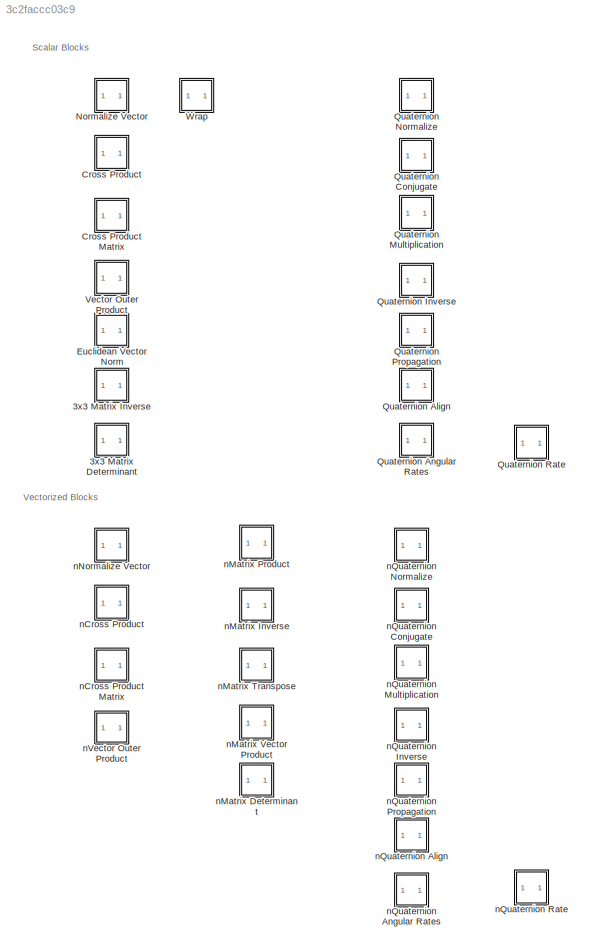
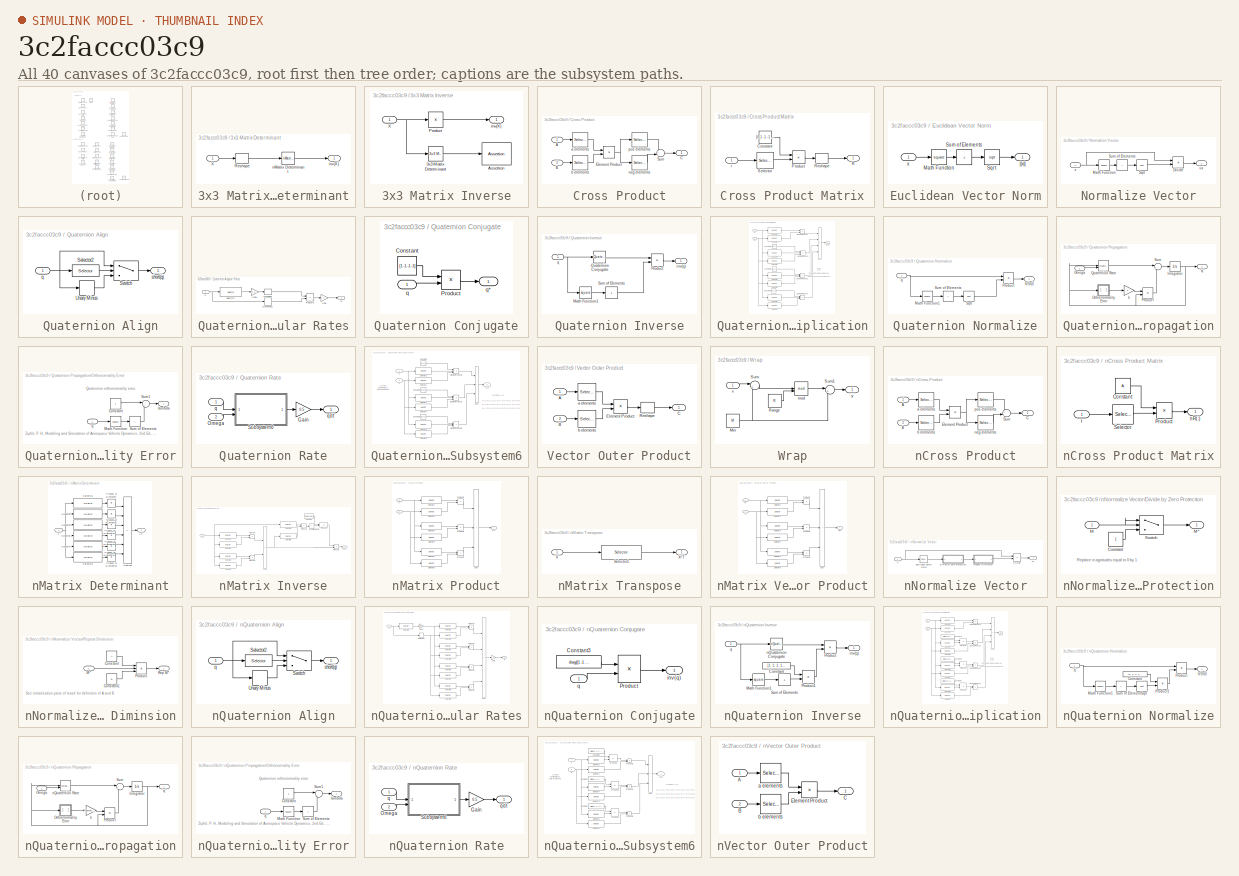
[diagram: thumbnail index - all 40 canvases of the model, root first then tree order]
MODEL slx_3c2faccc03c9
KIND library
CONFIG AbsTol = auto
CONFIG EnableMultiTasking = on
CONFIG FixedStep = auto
CONFIG MaxStep = auto
CONFIG MinStep = auto
CONFIG RelTol = 1e-3
CONFIG SampleTimeConstraint = Unconstrained
CONFIG SolverName = ode45
CONFIG StartTime = 0.0
CONFIG StopTime = 10.0
BLOCK [SubSystem] 3x3 Matrix Determinant
BLOCK [Reshape] 3x3 Matrix Determinant/Reshape
  OutputDimensionality = Column vector (2-D)
BLOCK [Inport] 3x3 Matrix Determinant/X
  PortDimensions = [3,3]
BLOCK [Outport] 3x3 Matrix Determinant/inv(X)
  PortDimensions = [1,1]
BLOCK [Reference] 3x3 Matrix Determinant/nMatrix Determinant  REF=$bdroot/nMatrix Determinant
  SourceBlock = $bdroot/nMatrix Determinant
  SourceType = nMatrix Determinant
BLOCK [SubSystem] 3x3 Matrix Inverse
BLOCK [Reference] 3x3 Matrix Inverse/3x3 Matrix Determinant  REF=$bdroot/3x3 Matrix Determinant
  SourceBlock = $bdroot/3x3 Matrix Determinant
  SourceType = Matrix Determinant (3x3)
BLOCK [Assertion] 3x3 Matrix Inverse/Assertion
  AssertionFailFcn = disp('Matrix inverse failed.  Matrix is singular.')
BLOCK [Product] 3x3 Matrix Inverse/Product
  Inputs = /
  Multiplication = Matrix(*)
  RndMeth = Zero
BLOCK [Inport] 3x3 Matrix Inverse/X
BLOCK [Outport] 3x3 Matrix Inverse/inv(X)
BLOCK [SubSystem] Cross Product
BLOCK [SubSystem] Cross Product Matrix
BLOCK [Constant] Cross Product Matrix/Constant
  Value = [0 1 -1 -1 0 1 1 -1 0]
BLOCK [Product] Cross Product Matrix/Product
  RndMeth = Zero
BLOCK [Outport] Cross Product Matrix/R
  PortDimensions = [3,3]
BLOCK [Reshape] Cross Product Matrix/Reshape
  OutputDimensionality = Customize
  OutputDimensions = [3,3]
BLOCK [Selector] Cross Product Matrix/Selector
  IndexOptions = Index vector (dialog)
  Indices = [1 3 2 3 2 1 2 1 3]
  InputPortWidth = 3
  OutputSizes = 1
BLOCK [Inport] Cross Product Matrix/r
BLOCK [Inport] Cross Product/A
BLOCK [Inport] Cross Product/B
  Port = 2
BLOCK [Outport] Cross Product/C
BLOCK [Product] Cross Product/Element Product
  RndMeth = Zero
BLOCK [Sum] Cross Product/Sum
  Inputs = +|-
BLOCK [Selector] Cross Product/a elements
  IndexOptions = Index vector (dialog)
  Indices = [2 3 1 3 1 2]
  InputPortWidth = 3
  OutputSizes = 1
BLOCK [Selector] Cross Product/b elements
  IndexOptions = Index vector (dialog)
  Indices = [3 1 2 2 3 1]
  InputPortWidth = 3
  OutputSizes = 1
BLOCK [Selector] Cross Product/neg elements
  IndexOptions = Index vector (dialog)
  Indices = [4:6]
  InputPortWidth = 6
  OutputSizes = 1
BLOCK [Selector] Cross Product/pos elements
  IndexOptions = Index vector (dialog)
  Indices = [1:3]
  InputPortWidth = 6
  OutputSizes = 1
BLOCK [SubSystem] Euclidean Vector Norm
BLOCK [Math] Euclidean Vector Norm/Math Function
  Operator = square
  SignedPower = on
BLOCK [Sqrt] Euclidean Vector Norm/Sqrt
BLOCK [Sum] Euclidean Vector Norm/Sum of Elements
  CollapseDim = dim
  CollapseMode = Specified dimension
  IconShape = rectangular
  Inputs = +
BLOCK [Inport] Euclidean Vector Norm/x
BLOCK [Outport] Euclidean Vector Norm/||x||
BLOCK [SubSystem] Normalize Vector
BLOCK [Product] Normalize Vector/Divide
  Inputs = */
BLOCK [Math] Normalize Vector/Math Function
  Operator = square
  SignedPower = on
BLOCK [Sqrt] Normalize Vector/Sqrt
BLOCK [Sum] Normalize Vector/Sum of Elements
  CollapseDim = dim
  IconShape = rectangular
  Inputs = +
BLOCK [Outport] Normalize Vector/ux
BLOCK [Inport] Normalize Vector/x
BLOCK [SubSystem] Quaternion Align
BLOCK [Selector] Quaternion Align/Selector2
  IndexOptions = Index vector (dialog)
  Indices = 1
  InputPortWidth = 4
  OutputSizes = 1
BLOCK [Switch] Quaternion Align/Switch
  Criteria = u2 > Threshold
  InputSameDT = off
  SaturateOnIntegerOverflow = off
  ZeroCross = off
BLOCK [UnaryMinus] Quaternion Align/Unary Minus
BLOCK [Inport] Quaternion Align/q
BLOCK [Outport] Quaternion Align/short(q)
BLOCK [SubSystem] Quaternion Angular Rates
BLOCK [Derivative] Quaternion Angular Rates/Derivative1
BLOCK [Gain] Quaternion Angular Rates/Gain
  Gain = 2
BLOCK [Gain] Quaternion Angular Rates/Gain1
  Gain = [-1 -1 -1, 1 -1 1, 1 1 -1, -1 1 1]'
BLOCK [Product] Quaternion Angular Rates/Product3
  Multiplication = Matrix(*)
  RndMeth = Zero
BLOCK [Reshape] Quaternion Angular Rates/Reshape
  OutputDimensionality = Customize
  OutputDimensions = [3,4]
BLOCK [Selector] Quaternion Angular Rates/Selector3
  IndexOptions = Index vector (dialog)
  Indices = [2 3 4, 1 4 3, 4 1 2, 3 2 1]
  InputPortWidth = 4
  OutputSizes = 1
BLOCK [Inport] Quaternion Angular Rates/q
  PortDimensions = 4
BLOCK [Outport] Quaternion Angular Rates/w
  PortDimensions = 3
BLOCK [SubSystem] Quaternion Conjugate
BLOCK [Constant] Quaternion Conjugate/Constant
  Value = [1 -1 -1 -1]
BLOCK [Product] Quaternion Conjugate/Product
  RndMeth = Zero
BLOCK [Inport] Quaternion Conjugate/q
BLOCK [Outport] Quaternion Conjugate/q*
BLOCK [SubSystem] Quaternion Inverse
BLOCK [Math] Quaternion Inverse/Math Function1
  Operator = square
  SignedPower = on
BLOCK [Product] Quaternion Inverse/Product
  Inputs = */
  RndMeth = Zero
BLOCK [Reference] Quaternion Inverse/Quaternion Conjugate  REF=$bdroot/Quaternion Conjugate
  SourceBlock = $bdroot/Quaternion Conjugate
  SourceType = Quaternion Conjugate (1-D)
BLOCK [Sum] Quaternion Inverse/Sum of Elements
  IconShape = rectangular
  Inputs = +
BLOCK [Outport] Quaternion Inverse/inv(q)
BLOCK [Inport] Quaternion Inverse/q
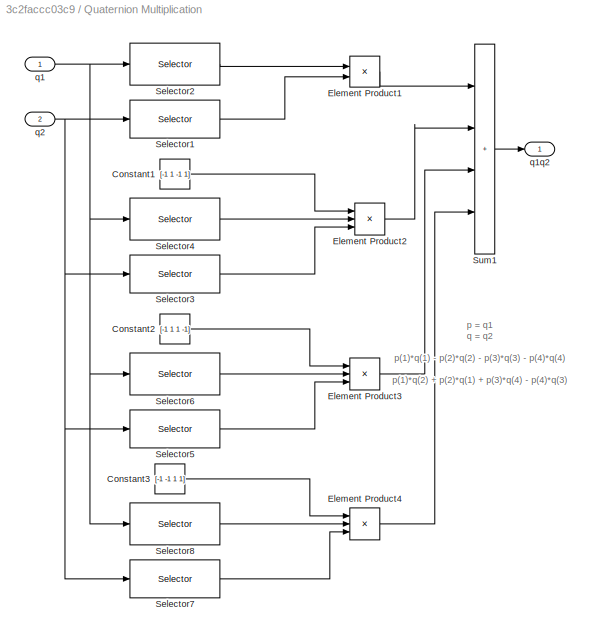
BLOCK [SubSystem] Quaternion Multiplication
BLOCK [Constant] Quaternion Multiplication/Constant1
  Value = [-1 1 -1 1]
BLOCK [Constant] Quaternion Multiplication/Constant2
  Value = [-1 1 1 -1]
BLOCK [Constant] Quaternion Multiplication/Constant3
  Value = [-1 -1 1 1]
BLOCK [Product] Quaternion Multiplication/Element Product1
  RndMeth = Zero
BLOCK [Product] Quaternion Multiplication/Element Product2
  Inputs = 3
  RndMeth = Zero
BLOCK [Product] Quaternion Multiplication/Element Product3
  Inputs = 3
  RndMeth = Zero
BLOCK [Product] Quaternion Multiplication/Element Product4
  Inputs = 3
  RndMeth = Zero
BLOCK [Selector] Quaternion Multiplication/Selector1
  IndexOptions = Index vector (dialog)
  Indices = [1 2 3 4]
  InputPortWidth = 4
  OutputSizes = 1
BLOCK [Selector] Quaternion Multiplication/Selector2
  IndexOptions = Index vector (dialog)
  Indices = [1 1 1 1]
  InputPortWidth = 4
  OutputSizes = 1
BLOCK [Selector] Quaternion Multiplication/Selector3
  IndexOptions = Index vector (dialog)
  Indices = [2 1 4 3]
  InputPortWidth = 4
  OutputSizes = 1
BLOCK [Selector] Quaternion Multiplication/Selector4
  IndexOptions = Index vector (dialog)
  Indices = [2 2 2 2]
  InputPortWidth = 4
  OutputSizes = 1
BLOCK [Selector] Quaternion Multiplication/Selector5
  IndexOptions = Index vector (dialog)
  Indices = [3 4 1 2]
  InputPortWidth = 4
  OutputSizes = 1
BLOCK [Selector] Quaternion Multiplication/Selector6
  IndexOptions = Index vector (dialog)
  Indices = [3 3 3 3]
  InputPortWidth = 4
  OutputSizes = 1
BLOCK [Selector] Quaternion Multiplication/Selector7
  IndexOptions = Index vector (dialog)
  Indices = [4 3 2 1]
  InputPortWidth = 4
  OutputSizes = 1
BLOCK [Selector] Quaternion Multiplication/Selector8
  IndexOptions = Index vector (dialog)
  Indices = [4 4 4 4]
  InputPortWidth = 4
  OutputSizes = 1
BLOCK [Sum] Quaternion Multiplication/Sum1
  IconShape = rectangular
  Inputs = ++++
BLOCK [Inport] Quaternion Multiplication/q1
BLOCK [Outport] Quaternion Multiplication/q1q2
BLOCK [Inport] Quaternion Multiplication/q2
  Port = 2
BLOCK [SubSystem] Quaternion Normalize
BLOCK [Math] Quaternion Normalize/Math Function1
  Operator = square
  SignedPower = on
BLOCK [Product] Quaternion Normalize/Product
  Inputs = */
  RndMeth = Zero
BLOCK [Sqrt] Quaternion Normalize/Sqrt
BLOCK [Sum] Quaternion Normalize/Sum of Elements
  IconShape = rectangular
  Inputs = +
BLOCK [Inport] Quaternion Normalize/q
BLOCK [Outport] Quaternion Normalize/q//||q||
BLOCK [SubSystem] Quaternion Propagation
BLOCK [Integrator] Quaternion Propagation/Integrator
  InitialCondition = qic
BLOCK [Inport] Quaternion Propagation/Omega
BLOCK [SubSystem] Quaternion Propagation/Orthonormality Error
BLOCK [Constant] Quaternion Propagation/Orthonormality Error/Constant
BLOCK [Math] Quaternion Propagation/Orthonormality Error/Math Function
  Operator = square
  SignedPower = on
BLOCK [Sum] Quaternion Propagation/Orthonormality Error/Sum of Elements
  IconShape = rectangular
  Inputs = +
BLOCK [Sum] Quaternion Propagation/Orthonormality Error/Sum1
  Inputs = |+-
BLOCK [Outport] Quaternion Propagation/Orthonormality Error/lambda
BLOCK [Inport] Quaternion Propagation/Orthonormality Error/q
BLOCK [Product] Quaternion Propagation/Product
  RndMeth = Zero
BLOCK [Reference] Quaternion Propagation/Quaternion Rate  REF=$bdroot/Quaternion Rate
  SourceBlock = $bdroot/Quaternion Rate
  SourceType = Quaternion Rate
BLOCK [Sum] Quaternion Propagation/Sum
  Inputs = |++
BLOCK [Gain] Quaternion Propagation/k
  Gain = k
BLOCK [Outport] Quaternion Propagation/q
BLOCK [SubSystem] Quaternion Rate
BLOCK [Gain] Quaternion Rate/Gain
  Gain = 0.5
BLOCK [Inport] Quaternion Rate/Omega
  Port = 2
BLOCK [SubSystem] Quaternion Rate/Subsystem6
BLOCK [Constant] Quaternion Rate/Subsystem6/Constant1
  Value = [-1 1 1 1]
BLOCK [Constant] Quaternion Rate/Subsystem6/Constant2
  Value = [-1 1 -1 1]
BLOCK [Constant] Quaternion Rate/Subsystem6/Constant3
  Value = [-1 -1 1 -1]
BLOCK [Product] Quaternion Rate/Subsystem6/Element Product1
  Inputs = 3
  RndMeth = Zero
BLOCK [Product] Quaternion Rate/Subsystem6/Element Product2
  Inputs = 3
  RndMeth = Zero
BLOCK [Product] Quaternion Rate/Subsystem6/Element Product3
  Inputs = 3
  RndMeth = Zero
BLOCK [Selector] Quaternion Rate/Subsystem6/Selector1
  IndexOptions = Index vector (dialog)
  Indices = [1 1 2 3]
  InputPortWidth = 3
  OutputSizes = 1
BLOCK [Selector] Quaternion Rate/Subsystem6/Selector2
  IndexOptions = Index vector (dialog)
  Indices = [2 1 1 1]
  InputPortWidth = 4
  OutputSizes = 1
BLOCK [Selector] Quaternion Rate/Subsystem6/Selector3
  IndexOptions = Index vector (dialog)
  Indices = [2 3 3 2]
  InputPortWidth = 3
  OutputSizes = 1
BLOCK [Selector] Quaternion Rate/Subsystem6/Selector4
  IndexOptions = Index vector (dialog)
  Indices = [3 3 2 2]
  InputPortWidth = 4
  OutputSizes = 1
BLOCK [Selector] Quaternion Rate/Subsystem6/Selector5
  IndexOptions = Index vector (dialog)
  Indices = [3 2 1 1]
  InputPortWidth = 3
  OutputSizes = 1
BLOCK [Selector] Quaternion Rate/Subsystem6/Selector6
  IndexOptions = Index vector (dialog)
  Indices = [4 4 4 3]
  InputPortWidth = 4
  OutputSizes = 1
BLOCK [Sum] Quaternion Rate/Subsystem6/Sum
  IconShape = rectangular
  Inputs = +++
BLOCK [Inport] Quaternion Rate/Subsystem6/p
BLOCK [Outport] Quaternion Rate/Subsystem6/p * q
BLOCK [Inport] Quaternion Rate/Subsystem6/q
  Port = 2
BLOCK [Inport] Quaternion Rate/q
BLOCK [Outport] Quaternion Rate/qdt
BLOCK [SubSystem] Vector Outer Product
BLOCK [Inport] Vector Outer Product/A
BLOCK [Inport] Vector Outer Product/B
  Port = 2
BLOCK [Outport] Vector Outer Product/C
BLOCK [Product] Vector Outer Product/Element Product
  RndMeth = Zero
BLOCK [Reshape] Vector Outer Product/Reshape
  OutputDimensionality = Customize
  OutputDimensions = [3,3]
BLOCK [Selector] Vector Outer Product/a elements
  IndexOptions = Index vector (dialog)
  Indices = [1 2 3 1 2 3 1 2 3]
  InputPortWidth = 3
  OutputSizes = 1
BLOCK [Selector] Vector Outer Product/b elements
  IndexOptions = Index vector (dialog)
  Indices = [1 1 1 2 2 2 3 3 3]
  InputPortWidth = 3
  OutputSizes = 1
BLOCK [SubSystem] Wrap
BLOCK [Constant] Wrap/Min
  Value = M
  VectorParams1D = off
BLOCK [Constant] Wrap/Range
  Value = R
  VectorParams1D = off
BLOCK [Sum] Wrap/Sum
  Inputs = |+-
BLOCK [Sum] Wrap/Sum1
  Inputs = |++
BLOCK [Math] Wrap/mod
  Operator = mod
  SignedPower = on
BLOCK [Inport] Wrap/x
BLOCK [Outport] Wrap/y
BLOCK [SubSystem] nCross Product
BLOCK [SubSystem] nCross Product Matrix
BLOCK [Constant] nCross Product Matrix/Constant
  Value = A
BLOCK [Product] nCross Product Matrix/Product
  Multiplication = Matrix(*)
  RndMeth = Zero
BLOCK [Selector] nCross Product Matrix/Selector
  IndexOptions = Index vector (dialog),Select all
  Indices = [1 3 2 3 2 1 2 1 3],1
  InputPortWidth = 3
  NumberOfDimensions = 2
  OutputSizes = 1,1
BLOCK [Outport] nCross Product Matrix/nR(:)
  PortDimensions = [9,n]
BLOCK [Inport] nCross Product Matrix/r
  PortDimensions = [3,n]
BLOCK [Inport] nCross Product/A
  PortDimensions = [3,n]
BLOCK [Inport] nCross Product/B
  Port = 2
  PortDimensions = [3,n]
BLOCK [Outport] nCross Product/C
  PortDimensions = [3,n]
BLOCK [Product] nCross Product/Element Product
  RndMeth = Zero
BLOCK [Sum] nCross Product/Sum
  Inputs = +|-
BLOCK [Selector] nCross Product/a elements
  IndexOptions = Index vector (dialog),Select all
  Indices = [2 3 1 3 1 2],1
  InputPortWidth = 3
  NumberOfDimensions = 2
  OutputSizes = 1,1
BLOCK [Selector] nCross Product/b elements
  IndexOptions = Index vector (dialog),Select all
  Indices = [3 1 2 2 3 1],1
  InputPortWidth = 3
  NumberOfDimensions = 2
  OutputSizes = 1,1
BLOCK [Selector] nCross Product/neg elements
  IndexOptions = Index vector (dialog),Select all
  Indices = [4:6],1
  InputPortWidth = 3
  NumberOfDimensions = 2
  OutputSizes = 1,1
BLOCK [Selector] nCross Product/pos elements
  IndexOptions = Index vector (dialog),Select all
  Indices = [1:3],1
  InputPortWidth = 3
  NumberOfDimensions = 2
  OutputSizes = 1,1
BLOCK [SubSystem] nMatrix Determinant
BLOCK [Product] nMatrix Determinant/Product of Elements
  CollapseMode = Specified dimension
  Inputs = *
BLOCK [Product] nMatrix Determinant/Product of Elements1
  CollapseMode = Specified dimension
  Inputs = *
BLOCK [Product] nMatrix Determinant/Product of Elements2
  CollapseMode = Specified dimension
  Inputs = *
BLOCK [Product] nMatrix Determinant/Product of Elements3
  CollapseMode = Specified dimension
  Inputs = *
BLOCK [Product] nMatrix Determinant/Product of Elements4
  CollapseMode = Specified dimension
  Inputs = *
BLOCK [Product] nMatrix Determinant/Product of Elements5
  CollapseMode = Specified dimension
  Inputs = *
BLOCK [Selector] nMatrix Determinant/Selector1
  IndexOptions = Index vector (dialog),Select all
  Indices = [4 8 3],1
  InputPortWidth = 3
  NumberOfDimensions = 2
  OutputSizes = 1,1
BLOCK [Selector] nMatrix Determinant/Selector2
  IndexOptions = Index vector (dialog),Select all
  Indices = [7 2 6],1
  InputPortWidth = 3
  NumberOfDimensions = 2
  OutputSizes = 1,1
BLOCK [Selector] nMatrix Determinant/Selector3
  IndexOptions = Index vector (dialog),Select all
  Indices = [7 5 3],1
  InputPortWidth = 3
  NumberOfDimensions = 2
  OutputSizes = 1,1
BLOCK [Selector] nMatrix Determinant/Selector4
  IndexOptions = Index vector (dialog),Select all
  Indices = [4 2 9],1
  InputPortWidth = 3
  NumberOfDimensions = 2
  OutputSizes = 1,1
BLOCK [Selector] nMatrix Determinant/Selector5
  IndexOptions = Index vector (dialog),Select all
  Indices = [1 8 6],1
  InputPortWidth = 3
  NumberOfDimensions = 2
  OutputSizes = 1,1
BLOCK [Selector] nMatrix Determinant/Selector6
  IndexOptions = Index vector (dialog),Select all
  Indices = [1 5 9],1
  InputPortWidth = 3
  NumberOfDimensions = 2
  OutputSizes = 1,1
BLOCK [Sum] nMatrix Determinant/Subtract
  IconShape = rectangular
  Inputs = +++---
BLOCK [Inport] nMatrix Determinant/X
  PortDimensions = [9,n]
BLOCK [Outport] nMatrix Determinant/|X|
  PortDimensions = [1,n]
BLOCK [SubSystem] nMatrix Inverse
BLOCK [Constant] nMatrix Inverse/Constant
  Value = ones(9,1)
  VectorParams1D = off
BLOCK [Product] nMatrix Inverse/Product1
  RndMeth = Zero
BLOCK [Product] nMatrix Inverse/Product4
  RndMeth = Zero
BLOCK [Product] nMatrix Inverse/Product5
  RndMeth = Zero
BLOCK [Product] nMatrix Inverse/Product6
  Multiplication = Matrix(*)
  RndMeth = Zero
BLOCK [Product] nMatrix Inverse/Product7
  Inputs = /*
  RndMeth = Zero
BLOCK [Selector] nMatrix Inverse/Selector1
  IndexOptions = Index vector (dialog),Select all
  Indices = [5 8 2 7 1 4 4 7 1],1
  InputPortWidth = 3
  NumberOfDimensions = 2
  OutputSizes = 1,1
BLOCK [Selector] nMatrix Inverse/Selector2
  IndexOptions = Index vector (dialog),Select all
  Indices = [9 3 6 6 9 3 8 2 5],1
  InputPortWidth = 3
  NumberOfDimensions = 2
  OutputSizes = 1,1
BLOCK [Selector] nMatrix Inverse/Selector3
  IndexOptions = Index vector (dialog),Select all
  Indices = [8 2 5 4 7 1 7 1 4],1
  InputPortWidth = 3
  NumberOfDimensions = 2
  OutputSizes = 1,1
BLOCK [Selector] nMatrix Inverse/Selector4
  IndexOptions = Index vector (dialog),Select all
  Indices = [6 9 3 9 3 6 5 8 2],1
  InputPortWidth = 3
  NumberOfDimensions = 2
  OutputSizes = 1,1
BLOCK [Selector] nMatrix Inverse/Selector5
  IndexOptions = Index vector (dialog),Select all
  Indices = [1 2 3],1
  InputPortWidth = 3
  NumberOfDimensions = 2
  OutputSizes = 1,1
BLOCK [Selector] nMatrix Inverse/Selector6
  IndexOptions = Index vector (dialog),Select all
  Indices = [1 4 7],1
  InputPortWidth = 3
  NumberOfDimensions = 2
  OutputSizes = 1,1
BLOCK [Sum] nMatrix Inverse/Sum of Elements
  CollapseMode = Specified dimension
  IconShape = rectangular
  Inputs = +
BLOCK [Sum] nMatrix Inverse/Sum1
  IconShape = rectangular
  Inputs = +-
BLOCK [Inport] nMatrix Inverse/X
  PortDimensions = [9,n]
BLOCK [Outport] nMatrix Inverse/inv(X)
  PortDimensions = [9,n]
BLOCK [SubSystem] nMatrix Product
BLOCK [Product] nMatrix Product/Product1
  RndMeth = Zero
BLOCK [Product] nMatrix Product/Product2
  RndMeth = Zero
BLOCK [Product] nMatrix Product/Product3
  RndMeth = Zero
BLOCK [Selector] nMatrix Product/Selector1
  IndexOptions = Index vector (dialog),Select all
  Indices = [1 2 3 1 2 3 1 2 3],1
  InputPortWidth = 3
  NumberOfDimensions = 2
  OutputSizes = 1,1
BLOCK [Selector] nMatrix Product/Selector2
  IndexOptions = Index vector (dialog),Select all
  Indices = [1 1 1 4 4 4 7 7 7],1
  InputPortWidth = 3
  NumberOfDimensions = 2
  OutputSizes = 1,1
BLOCK [Selector] nMatrix Product/Selector3
  IndexOptions = Index vector (dialog),Select all
  Indices = [4 5 6 4 5 6 4 5 6],1
  InputPortWidth = 3
  NumberOfDimensions = 2
  OutputSizes = 1,1
BLOCK [Selector] nMatrix Product/Selector4
  IndexOptions = Index vector (dialog),Select all
  Indices = [2 2 2 5 5 5 8 8 8],1
  InputPortWidth = 3
  NumberOfDimensions = 2
  OutputSizes = 1,1
BLOCK [Selector] nMatrix Product/Selector5
  IndexOptions = Index vector (dialog),Select all
  Indices = [7 8 9  7 8 9 7 8 9],1
  InputPortWidth = 3
  NumberOfDimensions = 2
  OutputSizes = 1,1
BLOCK [Selector] nMatrix Product/Selector6
  IndexOptions = Index vector (dialog),Select all
  Indices = [3 3 3 6 6 6 9 9 9],1
  InputPortWidth = 3
  NumberOfDimensions = 2
  OutputSizes = 1,1
BLOCK [Sum] nMatrix Product/Sum
  IconShape = rectangular
  Inputs = +++
BLOCK [Inport] nMatrix Product/X
  PortDimensions = [9,n]
BLOCK [Outport] nMatrix Product/X*Y
  PortDimensions = [9,n]
BLOCK [Inport] nMatrix Product/Y
  Port = 2
  PortDimensions = [9,n]
BLOCK [SubSystem] nMatrix Transpose
BLOCK [Selector] nMatrix Transpose/Selector1
  IndexOptions = Index vector (dialog),Select all
  Indices = [1 4 7 2 5 8 3 6 9],1
  InputPortWidth = 3
  NumberOfDimensions = 2
  OutputSizes = 1,1
BLOCK [Inport] nMatrix Transpose/X
  PortDimensions = [9,n]
BLOCK [Outport] nMatrix Transpose/X^T
  PortDimensions = [9,n]
BLOCK [SubSystem] nMatrix Vector Product
BLOCK [Inport] nMatrix Vector Product/M
  PortDimensions = [9,n]
BLOCK [Outport] nMatrix Vector Product/M*v
  PortDimensions = [3,n]
BLOCK [Product] nMatrix Vector Product/Product1
  RndMeth = Zero
BLOCK [Product] nMatrix Vector Product/Product2
  RndMeth = Zero
BLOCK [Product] nMatrix Vector Product/Product3
  RndMeth = Zero
BLOCK [Selector] nMatrix Vector Product/Selector1
  IndexOptions = Index vector (dialog),Select all
  Indices = [1 2 3],1
  InputPortWidth = 3
  NumberOfDimensions = 2
  OutputSizes = 1,1
BLOCK [Selector] nMatrix Vector Product/Selector2
  IndexOptions = Index vector (dialog),Select all
  Indices = [1 1 1],1
  InputPortWidth = 3
  NumberOfDimensions = 2
  OutputSizes = 1,1
BLOCK [Selector] nMatrix Vector Product/Selector3
  IndexOptions = Index vector (dialog),Select all
  Indices = [4 5 6],1
  InputPortWidth = 3
  NumberOfDimensions = 2
  OutputSizes = 1,1
BLOCK [Selector] nMatrix Vector Product/Selector4
  IndexOptions = Index vector (dialog),Select all
  Indices = [2 2 2],1
  InputPortWidth = 3
  NumberOfDimensions = 2
  OutputSizes = 1,1
BLOCK [Selector] nMatrix Vector Product/Selector5
  IndexOptions = Index vector (dialog),Select all
  Indices = [7 8 9],1
  InputPortWidth = 3
  NumberOfDimensions = 2
  OutputSizes = 1,1
BLOCK [Selector] nMatrix Vector Product/Selector6
  IndexOptions = Index vector (dialog),Select all
  Indices = [3 3 3],1
  InputPortWidth = 3
  NumberOfDimensions = 2
  OutputSizes = 1,1
BLOCK [Sum] nMatrix Vector Product/Sum
  IconShape = rectangular
  Inputs = +++
BLOCK [Inport] nMatrix Vector Product/v
  Port = 2
  PortDimensions = [3,n]
BLOCK [SubSystem] nNormalize Vector
BLOCK [Product] nNormalize Vector/Divide
  Inputs = */
BLOCK [SubSystem] nNormalize Vector/Divide by Zero Protection
BLOCK [Constant] nNormalize Vector/Divide by Zero Protection/Constant
BLOCK [Inport] nNormalize Vector/Divide by Zero Protection/M
BLOCK [Outport] nNormalize Vector/Divide by Zero Protection/M*
BLOCK [Switch] nNormalize Vector/Divide by Zero Protection/Switch
  Criteria = u2 ~= 0
  InputSameDT = off
  SaturateOnIntegerOverflow = off
  ZeroCross = off
BLOCK [Reference] nNormalize Vector/Euclidean Vector Norm  REF=$bdroot/Euclidean Vector Norm
  SourceBlock = $bdroot/Euclidean Vector Norm
  SourceType = Euclidean Norm
BLOCK [SubSystem] nNormalize Vector/Repeat Diminsion
BLOCK [Constant] nNormalize Vector/Repeat Diminsion/Constant
  Value = A
  VectorParams1D = off
BLOCK [Constant] nNormalize Vector/Repeat Diminsion/Constant1
  Value = B
  VectorParams1D = off
BLOCK [Inport] nNormalize Vector/Repeat Diminsion/M*
BLOCK [Product] nNormalize Vector/Repeat Diminsion/Product
  Inputs = 3
  Multiplication = Matrix(*)
  RndMeth = Zero
BLOCK [Outport] nNormalize Vector/Repeat Diminsion/Rep M*
BLOCK [Outport] nNormalize Vector/ux
  PortDimensions = n
BLOCK [Inport] nNormalize Vector/x
  PortDimensions = n
BLOCK [SubSystem] nQuaternion Align
BLOCK [Selector] nQuaternion Align/Selector2
  IndexOptions = Index vector (dialog),Select all
  Indices = 1,1
  InputPortWidth = 3
  NumberOfDimensions = 2
  OutputSizes = 1,1
BLOCK [Switch] nQuaternion Align/Switch
  Criteria = u2 > Threshold
  InputSameDT = off
  SaturateOnIntegerOverflow = off
  ZeroCross = off
BLOCK [UnaryMinus] nQuaternion Align/Unary Minus
BLOCK [Inport] nQuaternion Align/q
  PortDimensions = [4,n]
BLOCK [Outport] nQuaternion Align/short(q)
  PortDimensions = [4,n]
BLOCK [SubSystem] nQuaternion Angular Rates
BLOCK [Derivative] nQuaternion Angular Rates/Derivative1
BLOCK [Gain] nQuaternion Angular Rates/Gain
  Gain = 2
BLOCK [Gain] nQuaternion Angular Rates/Gain1
  Gain = repmat([-1 -1 -1, 1 -1 1, 1 1 -1, -1 1 1]',1,n)
BLOCK [Product] nQuaternion Angular Rates/Product1
  RndMeth = Zero
BLOCK [Product] nQuaternion Angular Rates/Product2
  RndMeth = Zero
BLOCK [Product] nQuaternion Angular Rates/Product3
  RndMeth = Zero
BLOCK [Product] nQuaternion Angular Rates/Product4
  RndMeth = Zero
BLOCK [Selector] nQuaternion Angular Rates/Selector1
  IndexOptions = Index vector (dialog),Select all
  Indices = [1 2 3],1
  InputPortWidth = 3
  NumberOfDimensions = 2
  OutputSizes = 1,1
BLOCK [Selector] nQuaternion Angular Rates/Selector2
  IndexOptions = Index vector (dialog),Select all
  Indices = [1 1 1],1
  InputPortWidth = 3
  NumberOfDimensions = 2
  OutputSizes = 1,1
BLOCK [Selector] nQuaternion Angular Rates/Selector3
  IndexOptions = Index vector (dialog),Select all
  Indices = [2 3 4, 1 4 3, 4 1 2, 3 2 1],1
  InputPortWidth = 4
  NumberOfDimensions = 2
  OutputSizes = 1,1
BLOCK [Selector] nQuaternion Angular Rates/Selector4
  IndexOptions = Index vector (dialog),Select all
  Indices = [4 5 6],1
  InputPortWidth = 3
  NumberOfDimensions = 2
  OutputSizes = 1,1
BLOCK [Selector] nQuaternion Angular Rates/Selector5
  IndexOptions = Index vector (dialog),Select all
  Indices = [2 2 2],1
  InputPortWidth = 3
  NumberOfDimensions = 2
  OutputSizes = 1,1
BLOCK [Selector] nQuaternion Angular Rates/Selector6
  IndexOptions = Index vector (dialog),Select all
  Indices = [7 8 9],1
  InputPortWidth = 3
  NumberOfDimensions = 2
  OutputSizes = 1,1
BLOCK [Selector] nQuaternion Angular Rates/Selector7
  IndexOptions = Index vector (dialog),Select all
  Indices = [3 3 3],1
  InputPortWidth = 3
  NumberOfDimensions = 2
  OutputSizes = 1,1
BLOCK [Selector] nQuaternion Angular Rates/Selector8
  IndexOptions = Index vector (dialog),Select all
  Indices = [10 11 12],1
  InputPortWidth = 3
  NumberOfDimensions = 2
  OutputSizes = 1,1
BLOCK [Selector] nQuaternion Angular Rates/Selector9
  IndexOptions = Index vector (dialog),Select all
  Indices = [4 4 4],1
  InputPortWidth = 3
  NumberOfDimensions = 2
  OutputSizes = 1,1
BLOCK [Sum] nQuaternion Angular Rates/Sum
  IconShape = rectangular
  Inputs = ++++
BLOCK [Inport] nQuaternion Angular Rates/q
  PortDimensions = [4,n]
BLOCK [Outport] nQuaternion Angular Rates/w
  PortDimensions = [3,n]
BLOCK [SubSystem] nQuaternion Conjugate
BLOCK [Constant] nQuaternion Conjugate/Constant3
  Value = diag([1 -1 -1 -1])
  VectorParams1D = off
BLOCK [Product] nQuaternion Conjugate/Product
  Multiplication = Matrix(*)
  RndMeth = Zero
BLOCK [Outport] nQuaternion Conjugate/inv(q)
  PortDimensions = [4,n]
BLOCK [Inport] nQuaternion Conjugate/q
  PortDimensions = [4,n]
BLOCK [SubSystem] nQuaternion Inverse
BLOCK [Constant] nQuaternion Inverse/Constant
  Value = [1; 1; 1; 1;]
  VectorParams1D = off
BLOCK [Math] nQuaternion Inverse/Math Function1
  Operator = square
  SignedPower = on
BLOCK [Product] nQuaternion Inverse/Product
  Inputs = */
  RndMeth = Zero
BLOCK [Product] nQuaternion Inverse/Product1
  Multiplication = Matrix(*)
  RndMeth = Zero
BLOCK [Sum] nQuaternion Inverse/Sum of Elements
  CollapseMode = Specified dimension
  IconShape = rectangular
  Inputs = +
BLOCK [Outport] nQuaternion Inverse/inv(q)
  PortDimensions = [4,n]
BLOCK [Reference] nQuaternion Inverse/nQuaternion Conjugate  REF=$bdroot/nQuaternion Conjugate
  SourceBlock = $bdroot/nQuaternion Conjugate
  SourceType = nQuaternion Conjugate
BLOCK [Inport] nQuaternion Inverse/q
  PortDimensions = [4,n]
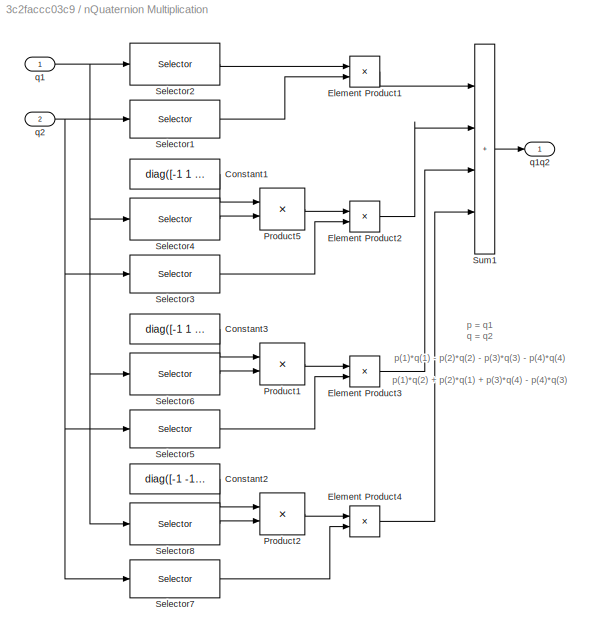
BLOCK [SubSystem] nQuaternion Multiplication
BLOCK [Constant] nQuaternion Multiplication/Constant1
  Value = diag([-1 1 -1 1])
  VectorParams1D = off
BLOCK [Constant] nQuaternion Multiplication/Constant2
  Value = diag([-1 -1 1 1])
  VectorParams1D = off
BLOCK [Constant] nQuaternion Multiplication/Constant3
  Value = diag([-1 1 1 -1])
  VectorParams1D = off
BLOCK [Product] nQuaternion Multiplication/Element Product1
  RndMeth = Zero
BLOCK [Product] nQuaternion Multiplication/Element Product2
  RndMeth = Zero
BLOCK [Product] nQuaternion Multiplication/Element Product3
  RndMeth = Zero
BLOCK [Product] nQuaternion Multiplication/Element Product4
  RndMeth = Zero
BLOCK [Product] nQuaternion Multiplication/Product1
  Multiplication = Matrix(*)
  RndMeth = Zero
BLOCK [Product] nQuaternion Multiplication/Product2
  Multiplication = Matrix(*)
  RndMeth = Zero
BLOCK [Product] nQuaternion Multiplication/Product5
  Multiplication = Matrix(*)
  RndMeth = Zero
BLOCK [Selector] nQuaternion Multiplication/Selector1
  IndexOptions = Index vector (dialog),Select all
  Indices = [1 2 3 4],1
  InputPortWidth = 3
  NumberOfDimensions = 2
  OutputSizes = 1,1
BLOCK [Selector] nQuaternion Multiplication/Selector2
  IndexOptions = Index vector (dialog),Select all
  Indices = [1 1 1 1],1
  InputPortWidth = 3
  NumberOfDimensions = 2
  OutputSizes = 1,1
BLOCK [Selector] nQuaternion Multiplication/Selector3
  IndexOptions = Index vector (dialog),Select all
  Indices = [2 1 4 3],1
  InputPortWidth = 3
  NumberOfDimensions = 2
  OutputSizes = 1,1
BLOCK [Selector] nQuaternion Multiplication/Selector4
  IndexOptions = Index vector (dialog),Select all
  Indices = [2 2 2 2],1
  InputPortWidth = 3
  NumberOfDimensions = 2
  OutputSizes = 1,1
BLOCK [Selector] nQuaternion Multiplication/Selector5
  IndexOptions = Index vector (dialog),Select all
  Indices = [3 4 1 2],1
  InputPortWidth = 3
  NumberOfDimensions = 2
  OutputSizes = 1,1
BLOCK [Selector] nQuaternion Multiplication/Selector6
  IndexOptions = Index vector (dialog),Select all
  Indices = [3 3 3 3],1
  InputPortWidth = 3
  NumberOfDimensions = 2
  OutputSizes = 1,1
BLOCK [Selector] nQuaternion Multiplication/Selector7
  IndexOptions = Index vector (dialog),Select all
  Indices = [4 3 2 1],1
  InputPortWidth = 3
  NumberOfDimensions = 2
  OutputSizes = 1,1
BLOCK [Selector] nQuaternion Multiplication/Selector8
  IndexOptions = Index vector (dialog),Select all
  Indices = [4 4 4 4],1
  InputPortWidth = 3
  NumberOfDimensions = 2
  OutputSizes = 1,1
BLOCK [Sum] nQuaternion Multiplication/Sum1
  IconShape = rectangular
  Inputs = ++++
BLOCK [Inport] nQuaternion Multiplication/q1
  PortDimensions = [4,n]
BLOCK [Outport] nQuaternion Multiplication/q1q2
  PortDimensions = [4,n]
BLOCK [Inport] nQuaternion Multiplication/q2
  Port = 2
  PortDimensions = [4,n]
BLOCK [SubSystem] nQuaternion Normalize
BLOCK [Constant] nQuaternion Normalize/Constant
  Value = [1; 1; 1; 1;]
  VectorParams1D = off
BLOCK [Math] nQuaternion Normalize/Math Function1
  Operator = square
  SignedPower = on
BLOCK [Product] nQuaternion Normalize/Product
  Inputs = */
  RndMeth = Zero
BLOCK [Product] nQuaternion Normalize/Product1
  Multiplication = Matrix(*)
  RndMeth = Zero
BLOCK [Sqrt] nQuaternion Normalize/Sqrt
BLOCK [Sum] nQuaternion Normalize/Sum of Elements
  CollapseMode = Specified dimension
  IconShape = rectangular
  Inputs = +
BLOCK [Inport] nQuaternion Normalize/q
  PortDimensions = [4,n]
BLOCK [Outport] nQuaternion Normalize/q//||q||
  PortDimensions = [4,n]
BLOCK [SubSystem] nQuaternion Propagation
BLOCK [Integrator] nQuaternion Propagation/Integrator
  InitialCondition = q0
BLOCK [Inport] nQuaternion Propagation/Omega
  PortDimensions = [3,n]
BLOCK [SubSystem] nQuaternion Propagation/Orthonormality Error
BLOCK [Constant] nQuaternion Propagation/Orthonormality Error/Constant
BLOCK [Math] nQuaternion Propagation/Orthonormality Error/Math Function
  Operator = square
  SignedPower = on
BLOCK [Sum] nQuaternion Propagation/Orthonormality Error/Sum of Elements
  CollapseMode = Specified dimension
  IconShape = rectangular
  Inputs = +
BLOCK [Sum] nQuaternion Propagation/Orthonormality Error/Sum1
  Inputs = |+-
BLOCK [Outport] nQuaternion Propagation/Orthonormality Error/lambda
  PortDimensions = [1,n]
BLOCK [Inport] nQuaternion Propagation/Orthonormality Error/q
  PortDimensions = [4,n]
BLOCK [Product] nQuaternion Propagation/Product
  RndMeth = Zero
BLOCK [Sum] nQuaternion Propagation/Sum
  Inputs = |++
BLOCK [Gain] nQuaternion Propagation/k
  Gain = repmat(k,n,1)
  Multiplication = Matrix(K*u)
BLOCK [Reference] nQuaternion Propagation/nQuaternion Rate  REF=$bdroot/nQuaternion Rate
  SourceBlock = $bdroot/nQuaternion Rate
  SourceType = Quaternion Rate
BLOCK [Outport] nQuaternion Propagation/q
  PortDimensions = [4,n]
BLOCK [SubSystem] nQuaternion Rate
BLOCK [Gain] nQuaternion Rate/Gain
  Gain = 0.5
BLOCK [Inport] nQuaternion Rate/Omega
  Port = 2
  PortDimensions = [3,n]
BLOCK [SubSystem] nQuaternion Rate/Subsystem6
BLOCK [Constant] nQuaternion Rate/Subsystem6/Constant1
  Value = diag([-1 1 -1 1])
  VectorParams1D = off
BLOCK [Constant] nQuaternion Rate/Subsystem6/Constant3
  Value = diag([-1 -1 1 -1])
  VectorParams1D = off
BLOCK [Constant] nQuaternion Rate/Subsystem6/Constant4
  Value = diag([-1 1 1 1])
  VectorParams1D = off
BLOCK [Product] nQuaternion Rate/Subsystem6/Product1
  Multiplication = Matrix(*)
  RndMeth = Zero
BLOCK [Product] nQuaternion Rate/Subsystem6/Product3
  RndMeth = Zero
BLOCK [Product] nQuaternion Rate/Subsystem6/Product4
  RndMeth = Zero
BLOCK [Product] nQuaternion Rate/Subsystem6/Product5
  Multiplication = Matrix(*)
  RndMeth = Zero
BLOCK [Product] nQuaternion Rate/Subsystem6/Product6
  RndMeth = Zero
BLOCK [Product] nQuaternion Rate/Subsystem6/Product8
  Multiplication = Matrix(*)
  RndMeth = Zero
BLOCK [Selector] nQuaternion Rate/Subsystem6/Selector1
  IndexOptions = Index vector (dialog),Select all
  Indices = [1 1 2 3],1
  InputPortWidth = 3
  NumberOfDimensions = 2
  OutputSizes = 1,1
BLOCK [Selector] nQuaternion Rate/Subsystem6/Selector2
  IndexOptions = Index vector (dialog),Select all
  Indices = [2 1 1 1],1
  InputPortWidth = 3
  NumberOfDimensions = 2
  OutputSizes = 1,1
BLOCK [Selector] nQuaternion Rate/Subsystem6/Selector3
  IndexOptions = Index vector (dialog),Select all
  Indices = [2 3 3 2],1
  InputPortWidth = 3
  NumberOfDimensions = 2
  OutputSizes = 1,1
BLOCK [Selector] nQuaternion Rate/Subsystem6/Selector4
  IndexOptions = Index vector (dialog),Select all
  Indices = [3 3 2 2],1
  InputPortWidth = 3
  NumberOfDimensions = 2
  OutputSizes = 1,1
BLOCK [Selector] nQuaternion Rate/Subsystem6/Selector5
  IndexOptions = Index vector (dialog),Select all
  Indices = [3 2 1 1],1
  InputPortWidth = 3
  NumberOfDimensions = 2
  OutputSizes = 1,1
BLOCK [Selector] nQuaternion Rate/Subsystem6/Selector6
  IndexOptions = Index vector (dialog),Select all
  Indices = [4 4 4 3],1
  InputPortWidth = 3
  NumberOfDimensions = 2
  OutputSizes = 1,1
BLOCK [Sum] nQuaternion Rate/Subsystem6/Sum
  IconShape = rectangular
  Inputs = +++
BLOCK [Inport] nQuaternion Rate/Subsystem6/p
  PortDimensions = [4,nQuat]
BLOCK [Outport] nQuaternion Rate/Subsystem6/p * q
  PortDimensions = [4,nQuat]
BLOCK [Inport] nQuaternion Rate/Subsystem6/q
  Port = 2
  PortDimensions = [3,nQuat]
BLOCK [Inport] nQuaternion Rate/q
  PortDimensions = [4,n]
BLOCK [Outport] nQuaternion Rate/qdt
  PortDimensions = [4,n]
BLOCK [SubSystem] nVector Outer Product
BLOCK [Inport] nVector Outer Product/A
  PortDimensions = [3,n]
BLOCK [Inport] nVector Outer Product/B
  Port = 2
  PortDimensions = [3,n]
BLOCK [Outport] nVector Outer Product/C
  PortDimensions = [9,n]
BLOCK [Product] nVector Outer Product/Element Product
  RndMeth = Zero
BLOCK [Selector] nVector Outer Product/a elements
  IndexOptions = Index vector (dialog),Select all
  Indices = [1 2 3 1 2 3 1 2 3],1
  InputPortWidth = 3
  NumberOfDimensions = 2
  OutputSizes = 1,1
BLOCK [Selector] nVector Outer Product/b elements
  IndexOptions = Index vector (dialog),Select all
  Indices = [1 1 1 2 2 2 3 3 3],1
  InputPortWidth = 3
  NumberOfDimensions = 2
  OutputSizes = 1,1
ANNOTATION (root): Scalar Blocks
ANNOTATION (root): Vectorized Blocks
ANNOTATION Quaternion Multiplication: p = q1 q = q2 p(1)*q(1) - p(2)*q(2) - p(3)*q(3) - p(4)*q(4) p(1)*q(2) + p(2)*q(1) + p(3)*q(4) - p(4)*q(3) p(1)*q(3) - p(2)*q(4) + p(3)*q(1) + p(4)*q(2) p(1)*q(4) + p(2)*q(3) - p(3)*q(2) + p(4)*q(1)
ANNOTATION Quaternion Propagation/Orthonormality Error: Quaternion orthonormality error.
ANNOTATION Quaternion Propagation/Orthonormality Error: Zipfel, P. H., Modeling and Simulation of Aerospace Vehicle Dynamics, 2nd Ed., p372
ANNOTATION Quaternion Rate/Subsystem6: Assume q inputted with only last three elements
ANNOTATION Quaternion Rate/Subsystem6: Assume q(1)=0
ANNOTATION Quaternion Rate/Subsystem6: p(1)*q(1) - p(2)*q(2) - p(3)*q(3) - p(4)*q(4) p(1)*q(2) + p(2)*q(1) + p(3)*q(4) - p(4)*q(3) p(1)*q(3) - p(2)*q(4) + p(3)*q(1) + p(4)*q(2) p(1)*q(4) + p(2)*q(3) - p(3)*q(2) + p(4)*q(1)
ANNOTATION nNormalize Vector/Divide by Zero Protection: Replace magnitudes equal to 0 by 1
ANNOTATION nNormalize Vector/Repeat Diminsion: See initialization pane of mask for definition of A and B.
ANNOTATION nQuaternion Multiplication: p = q1 q = q2 p(1)*q(1) - p(2)*q(2) - p(3)*q(3) - p(4)*q(4) p(1)*q(2) + p(2)*q(1) + p(3)*q(4) - p(4)*q(3) p(1)*q(3) - p(2)*q(4) + p(3)*q(1) + p(4)*q(2) p(1)*q(4) + p(2)*q(3) - p(3)*q(2) + p(4)*q(1)
ANNOTATION nQuaternion Propagation/Orthonormality Error: Quaternion orthonormality error.
ANNOTATION nQuaternion Propagation/Orthonormality Error: Zipfel, P. H., Modeling and Simulation of Aerospace Vehicle Dynamics, 2nd Ed., p372
ANNOTATION nQuaternion Rate/Subsystem6: Assume q inputted with only last three elements
ANNOTATION nQuaternion Rate/Subsystem6: Assume q(1)=0
ANNOTATION nQuaternion Rate/Subsystem6: p(1)*q(1) - p(2)*q(2) - p(3)*q(3) - p(4)*q(4) p(1)*q(2) + p(2)*q(1) + p(3)*q(4) - p(4)*q(3) p(1)*q(3) - p(2)*q(4) + p(3)*q(1) + p(4)*q(2) p(1)*q(4) + p(2)*q(3) - p(3)*q(2) + p(4)*q(1)
LINE 3x3 Matrix Determinant/Reshape:1 -> 3x3 Matrix Determinant/nMatrix Determinant:1
LINE 3x3 Matrix Determinant/X:1 -> 3x3 Matrix Determinant/Reshape:1
LINE 3x3 Matrix Determinant/nMatrix Determinant:1 -> 3x3 Matrix Determinant/inv(X):1
LINE 3x3 Matrix Inverse/3x3 Matrix Determinant:1 -> 3x3 Matrix Inverse/Assertion:1
LINE 3x3 Matrix Inverse/Product:1 -> 3x3 Matrix Inverse/inv(X):1
NET 3x3 Matrix Inverse/X:1 -> 3x3 Matrix Inverse/3x3 Matrix Determinant:1, 3x3 Matrix Inverse/Product:1
LINE Cross Product Matrix/Constant:1 -> Cross Product Matrix/Product:1
LINE Cross Product Matrix/Product:1 -> Cross Product Matrix/Reshape:1
LINE Cross Product Matrix/Reshape:1 -> Cross Product Matrix/R:1
LINE Cross Product Matrix/Selector:1 -> Cross Product Matrix/Product:2
LINE Cross Product Matrix/r:1 -> Cross Product Matrix/Selector:1
LINE Cross Product/A:1 -> Cross Product/a elements:1
LINE Cross Product/B:1 -> Cross Product/b elements:1
NET Cross Product/Element Product:1 -> Cross Product/neg elements:1, Cross Product/pos elements:1
LINE Cross Product/Sum:1 -> Cross Product/C:1
LINE Cross Product/a elements:1 -> Cross Product/Element Product:1
LINE Cross Product/b elements:1 -> Cross Product/Element Product:2
LINE Cross Product/neg elements:1 -> Cross Product/Sum:2
LINE Cross Product/pos elements:1 -> Cross Product/Sum:1
LINE Euclidean Vector Norm/Math Function:1 -> Euclidean Vector Norm/Sum of Elements:1
LINE Euclidean Vector Norm/Sqrt:1 -> Euclidean Vector Norm/||x||:1
LINE Euclidean Vector Norm/Sum of Elements:1 -> Euclidean Vector Norm/Sqrt:1
LINE Euclidean Vector Norm/x:1 -> Euclidean Vector Norm/Math Function:1
LINE Normalize Vector/Divide:1 -> Normalize Vector/ux:1
LINE Normalize Vector/Math Function:1 -> Normalize Vector/Sum of Elements:1
LINE Normalize Vector/Sqrt:1 -> Normalize Vector/Divide:2
LINE Normalize Vector/Sum of Elements:1 -> Normalize Vector/Sqrt:1
NET Normalize Vector/x:1 -> Normalize Vector/Divide:1, Normalize Vector/Math Function:1
LINE Quaternion Align/Selector2:1 -> Quaternion Align/Switch:2
LINE Quaternion Align/Switch:1 -> Quaternion Align/short(q):1
LINE Quaternion Align/Unary Minus:1 -> Quaternion Align/Switch:3
NET Quaternion Align/q:1 -> Quaternion Align/Selector2:1, Quaternion Align/Switch:1, Quaternion Align/Unary Minus:1
LINE Quaternion Angular Rates/Derivative1:1 -> Quaternion Angular Rates/Product3:2
LINE Quaternion Angular Rates/Gain1:1 -> Quaternion Angular Rates/Reshape:1
LINE Quaternion Angular Rates/Gain:1 -> Quaternion Angular Rates/w:1
LINE Quaternion Angular Rates/Product3:1 -> Quaternion Angular Rates/Gain:1
LINE Quaternion Angular Rates/Reshape:1 -> Quaternion Angular Rates/Product3:1
LINE Quaternion Angular Rates/Selector3:1 -> Quaternion Angular Rates/Gain1:1
NET Quaternion Angular Rates/q:1 -> Quaternion Angular Rates/Derivative1:1, Quaternion Angular Rates/Selector3:1
LINE Quaternion Conjugate/Constant:1 -> Quaternion Conjugate/Product:1
LINE Quaternion Conjugate/Product:1 -> Quaternion Conjugate/q*:1
LINE Quaternion Conjugate/q:1 -> Quaternion Conjugate/Product:2
LINE Quaternion Inverse/Math Function1:1 -> Quaternion Inverse/Sum of Elements:1
LINE Quaternion Inverse/Product:1 -> Quaternion Inverse/inv(q):1
LINE Quaternion Inverse/Quaternion Conjugate:1 -> Quaternion Inverse/Product:1
LINE Quaternion Inverse/Sum of Elements:1 -> Quaternion Inverse/Product:2
NET Quaternion Inverse/q:1 -> Quaternion Inverse/Math Function1:1, Quaternion Inverse/Quaternion Conjugate:1
LINE Quaternion Multiplication/Constant1:1 -> Quaternion Multiplication/Element Product2:1
LINE Quaternion Multiplication/Constant2:1 -> Quaternion Multiplication/Element Product3:1
LINE Quaternion Multiplication/Constant3:1 -> Quaternion Multiplication/Element Product4:1
LINE Quaternion Multiplication/Element Product1:1 -> Quaternion Multiplication/Sum1:1
LINE Quaternion Multiplication/Element Product2:1 -> Quaternion Multiplication/Sum1:2
LINE Quaternion Multiplication/Element Product3:1 -> Quaternion Multiplication/Sum1:3
LINE Quaternion Multiplication/Element Product4:1 -> Quaternion Multiplication/Sum1:4
LINE Quaternion Multiplication/Selector1:1 -> Quaternion Multiplication/Element Product1:2
LINE Quaternion Multiplication/Selector2:1 -> Quaternion Multiplication/Element Product1:1
LINE Quaternion Multiplication/Selector3:1 -> Quaternion Multiplication/Element Product2:3
LINE Quaternion Multiplication/Selector4:1 -> Quaternion Multiplication/Element Product2:2
LINE Quaternion Multiplication/Selector5:1 -> Quaternion Multiplication/Element Product3:3
LINE Quaternion Multiplication/Selector6:1 -> Quaternion Multiplication/Element Product3:2
LINE Quaternion Multiplication/Selector7:1 -> Quaternion Multiplication/Element Product4:3
LINE Quaternion Multiplication/Selector8:1 -> Quaternion Multiplication/Element Product4:2
LINE Quaternion Multiplication/Sum1:1 -> Quaternion Multiplication/q1q2:1
NET Quaternion Multiplication/q1:1 -> Quaternion Multiplication/Selector2:1, Quaternion Multiplication/Selector4:1, Quaternion Multiplication/Selector6:1, Quaternion Multiplication/Selector8:1
NET Quaternion Multiplication/q2:1 -> Quaternion Multiplication/Selector1:1, Quaternion Multiplication/Selector3:1, Quaternion Multiplication/Selector5:1, Quaternion Multiplication/Selector7:1
LINE Quaternion Normalize/Math Function1:1 -> Quaternion Normalize/Sum of Elements:1
LINE Quaternion Normalize/Product:1 -> Quaternion Normalize/q//||q||:1
LINE Quaternion Normalize/Sqrt:1 -> Quaternion Normalize/Product:2
LINE Quaternion Normalize/Sum of Elements:1 -> Quaternion Normalize/Sqrt:1
NET Quaternion Normalize/q:1 -> Quaternion Normalize/Math Function1:1, Quaternion Normalize/Product:1
NET Quaternion Propagation/Integrator:1 -> Quaternion Propagation/Orthonormality Error:1, Quaternion Propagation/Product:2, Quaternion Propagation/Quaternion Rate:1, Quaternion Propagation/q:1
LINE Quaternion Propagation/Omega:1 -> Quaternion Propagation/Quaternion Rate:2
LINE Quaternion Propagation/Orthonormality Error/Constant:1 -> Quaternion Propagation/Orthonormality Error/Sum1:1
LINE Quaternion Propagation/Orthonormality Error/Math Function:1 -> Quaternion Propagation/Orthonormality Error/Sum of Elements:1
LINE Quaternion Propagation/Orthonormality Error/Sum of Elements:1 -> Quaternion Propagation/Orthonormality Error/Sum1:2
LINE Quaternion Propagation/Orthonormality Error/Sum1:1 -> Quaternion Propagation/Orthonormality Error/lambda:1
LINE Quaternion Propagation/Orthonormality Error/q:1 -> Quaternion Propagation/Orthonormality Error/Math Function:1
LINE Quaternion Propagation/Orthonormality Error:1 -> Quaternion Propagation/k:1
LINE Quaternion Propagation/Product:1 -> Quaternion Propagation/Sum:2
LINE Quaternion Propagation/Quaternion Rate:1 -> Quaternion Propagation/Sum:1
LINE Quaternion Propagation/Sum:1 -> Quaternion Propagation/Integrator:1
LINE Quaternion Propagation/k:1 -> Quaternion Propagation/Product:1
LINE Quaternion Rate/Gain:1 -> Quaternion Rate/qdt:1
LINE Quaternion Rate/Omega:1 -> Quaternion Rate/Subsystem6:2
LINE Quaternion Rate/Subsystem6/Constant1:1 -> Quaternion Rate/Subsystem6/Element Product2:1
LINE Quaternion Rate/Subsystem6/Constant2:1 -> Quaternion Rate/Subsystem6/Element Product1:1
LINE Quaternion Rate/Subsystem6/Constant3:1 -> Quaternion Rate/Subsystem6/Element Product3:1
LINE Quaternion Rate/Subsystem6/Element Product1:1 -> Quaternion Rate/Subsystem6/Sum:2
LINE Quaternion Rate/Subsystem6/Element Product2:1 -> Quaternion Rate/Subsystem6/Sum:1
LINE Quaternion Rate/Subsystem6/Element Product3:1 -> Quaternion Rate/Subsystem6/Sum:3
LINE Quaternion Rate/Subsystem6/Selector1:1 -> Quaternion Rate/Subsystem6/Element Product2:3
LINE Quaternion Rate/Subsystem6/Selector2:1 -> Quaternion Rate/Subsystem6/Element Product2:2
LINE Quaternion Rate/Subsystem6/Selector3:1 -> Quaternion Rate/Subsystem6/Element Product1:3
LINE Quaternion Rate/Subsystem6/Selector4:1 -> Quaternion Rate/Subsystem6/Element Product1:2
LINE Quaternion Rate/Subsystem6/Selector5:1 -> Quaternion Rate/Subsystem6/Element Product3:3
LINE Quaternion Rate/Subsystem6/Selector6:1 -> Quaternion Rate/Subsystem6/Element Product3:2
LINE Quaternion Rate/Subsystem6/Sum:1 -> Quaternion Rate/Subsystem6/p * q:1
NET Quaternion Rate/Subsystem6/p:1 -> Quaternion Rate/Subsystem6/Selector2:1, Quaternion Rate/Subsystem6/Selector4:1, Quaternion Rate/Subsystem6/Selector6:1
NET Quaternion Rate/Subsystem6/q:1 -> Quaternion Rate/Subsystem6/Selector1:1, Quaternion Rate/Subsystem6/Selector3:1, Quaternion Rate/Subsystem6/Selector5:1
LINE Quaternion Rate/Subsystem6:1 -> Quaternion Rate/Gain:1
LINE Quaternion Rate/q:1 -> Quaternion Rate/Subsystem6:1
LINE Vector Outer Product/A:1 -> Vector Outer Product/a elements:1
LINE Vector Outer Product/B:1 -> Vector Outer Product/b elements:1
LINE Vector Outer Product/Element Product:1 -> Vector Outer Product/Reshape:1
LINE Vector Outer Product/Reshape:1 -> Vector Outer Product/C:1
LINE Vector Outer Product/a elements:1 -> Vector Outer Product/Element Product:1
LINE Vector Outer Product/b elements:1 -> Vector Outer Product/Element Product:2
NET Wrap/Min:1 -> Wrap/Sum1:2, Wrap/Sum:2
LINE Wrap/Range:1 -> Wrap/mod:2
LINE Wrap/Sum1:1 -> Wrap/y:1
LINE Wrap/Sum:1 -> Wrap/mod:1
LINE Wrap/mod:1 -> Wrap/Sum1:1
LINE Wrap/x:1 -> Wrap/Sum:1
LINE nCross Product Matrix/Constant:1 -> nCross Product Matrix/Product:1
LINE nCross Product Matrix/Product:1 -> nCross Product Matrix/nR(:):1
LINE nCross Product Matrix/Selector:1 -> nCross Product Matrix/Product:2
LINE nCross Product Matrix/r:1 -> nCross Product Matrix/Selector:1
LINE nCross Product/A:1 -> nCross Product/a elements:1
LINE nCross Product/B:1 -> nCross Product/b elements:1
NET nCross Product/Element Product:1 -> nCross Product/neg elements:1, nCross Product/pos elements:1
LINE nCross Product/Sum:1 -> nCross Product/C:1
LINE nCross Product/a elements:1 -> nCross Product/Element Product:1
LINE nCross Product/b elements:1 -> nCross Product/Element Product:2
LINE nCross Product/neg elements:1 -> nCross Product/Sum:2
LINE nCross Product/pos elements:1 -> nCross Product/Sum:1
LINE nMatrix Determinant/Product of Elements1:1 -> nMatrix Determinant/Subtract:2
LINE nMatrix Determinant/Product of Elements2:1 -> nMatrix Determinant/Subtract:3
LINE nMatrix Determinant/Product of Elements3:1 -> nMatrix Determinant/Subtract:4
LINE nMatrix Determinant/Product of Elements4:1 -> nMatrix Determinant/Subtract:5
LINE nMatrix Determinant/Product of Elements5:1 -> nMatrix Determinant/Subtract:6
LINE nMatrix Determinant/Product of Elements:1 -> nMatrix Determinant/Subtract:1
LINE nMatrix Determinant/Selector1:1 -> nMatrix Determinant/Product of Elements1:1
LINE nMatrix Determinant/Selector2:1 -> nMatrix Determinant/Product of Elements2:1
LINE nMatrix Determinant/Selector3:1 -> nMatrix Determinant/Product of Elements3:1
LINE nMatrix Determinant/Selector4:1 -> nMatrix Determinant/Product of Elements4:1
LINE nMatrix Determinant/Selector5:1 -> nMatrix Determinant/Product of Elements5:1
LINE nMatrix Determinant/Selector6:1 -> nMatrix Determinant/Product of Elements:1
LINE nMatrix Determinant/Subtract:1 -> nMatrix Determinant/|X|:1
NET nMatrix Determinant/X:1 -> nMatrix Determinant/Selector1:1, nMatrix Determinant/Selector2:1, nMatrix Determinant/Selector3:1, nMatrix Determinant/Selector4:1, nMatrix Determinant/Selector5:1, nMatrix Determinant/Selector6:1
LINE nMatrix Inverse/Constant:1 -> nMatrix Inverse/Product6:1
LINE nMatrix Inverse/Product1:1 -> nMatrix Inverse/Sum of Elements:1
LINE nMatrix Inverse/Product4:1 -> nMatrix Inverse/Sum1:1
LINE nMatrix Inverse/Product5:1 -> nMatrix Inverse/Sum1:2
LINE nMatrix Inverse/Product6:1 -> nMatrix Inverse/Product7:1
LINE nMatrix Inverse/Product7:1 -> nMatrix Inverse/inv(X):1
LINE nMatrix Inverse/Selector1:1 -> nMatrix Inverse/Product4:1
LINE nMatrix Inverse/Selector2:1 -> nMatrix Inverse/Product4:2
LINE nMatrix Inverse/Selector3:1 -> nMatrix Inverse/Product5:1
LINE nMatrix Inverse/Selector4:1 -> nMatrix Inverse/Product5:2
LINE nMatrix Inverse/Selector5:1 -> nMatrix Inverse/Product1:2
LINE nMatrix Inverse/Selector6:1 -> nMatrix Inverse/Product1:1
LINE nMatrix Inverse/Sum of Elements:1 -> nMatrix Inverse/Product6:2
NET nMatrix Inverse/Sum1:1 -> nMatrix Inverse/Product7:2, nMatrix Inverse/Selector5:1
NET nMatrix Inverse/X:1 -> nMatrix Inverse/Selector1:1, nMatrix Inverse/Selector2:1, nMatrix Inverse/Selector3:1, nMatrix Inverse/Selector4:1, nMatrix Inverse/Selector6:1
LINE nMatrix Product/Product1:1 -> nMatrix Product/Sum:1
LINE nMatrix Product/Product2:1 -> nMatrix Product/Sum:2
LINE nMatrix Product/Product3:1 -> nMatrix Product/Sum:3
LINE nMatrix Product/Selector1:1 -> nMatrix Product/Product1:1
LINE nMatrix Product/Selector2:1 -> nMatrix Product/Product1:2
LINE nMatrix Product/Selector3:1 -> nMatrix Product/Product2:1
LINE nMatrix Product/Selector4:1 -> nMatrix Product/Product2:2
LINE nMatrix Product/Selector5:1 -> nMatrix Product/Product3:1
LINE nMatrix Product/Selector6:1 -> nMatrix Product/Product3:2
LINE nMatrix Product/Sum:1 -> nMatrix Product/X*Y:1
NET nMatrix Product/X:1 -> nMatrix Product/Selector1:1, nMatrix Product/Selector3:1, nMatrix Product/Selector5:1
NET nMatrix Product/Y:1 -> nMatrix Product/Selector2:1, nMatrix Product/Selector4:1, nMatrix Product/Selector6:1
LINE nMatrix Transpose/Selector1:1 -> nMatrix Transpose/X^T:1
LINE nMatrix Transpose/X:1 -> nMatrix Transpose/Selector1:1
NET nMatrix Vector Product/M:1 -> nMatrix Vector Product/Selector1:1, nMatrix Vector Product/Selector3:1, nMatrix Vector Product/Selector5:1
LINE nMatrix Vector Product/Product1:1 -> nMatrix Vector Product/Sum:1
LINE nMatrix Vector Product/Product2:1 -> nMatrix Vector Product/Sum:2
LINE nMatrix Vector Product/Product3:1 -> nMatrix Vector Product/Sum:3
LINE nMatrix Vector Product/Selector1:1 -> nMatrix Vector Product/Product1:1
LINE nMatrix Vector Product/Selector2:1 -> nMatrix Vector Product/Product1:2
LINE nMatrix Vector Product/Selector3:1 -> nMatrix Vector Product/Product2:1
LINE nMatrix Vector Product/Selector4:1 -> nMatrix Vector Product/Product2:2
LINE nMatrix Vector Product/Selector5:1 -> nMatrix Vector Product/Product3:1
LINE nMatrix Vector Product/Selector6:1 -> nMatrix Vector Product/Product3:2
LINE nMatrix Vector Product/Sum:1 -> nMatrix Vector Product/M*v:1
NET nMatrix Vector Product/v:1 -> nMatrix Vector Product/Selector2:1, nMatrix Vector Product/Selector4:1, nMatrix Vector Product/Selector6:1
LINE nNormalize Vector/Divide by Zero Protection/Constant:1 -> nNormalize Vector/Divide by Zero Protection/Switch:3
NET nNormalize Vector/Divide by Zero Protection/M:1 -> nNormalize Vector/Divide by Zero Protection/Switch:1, nNormalize Vector/Divide by Zero Protection/Switch:2
LINE nNormalize Vector/Divide by Zero Protection/Switch:1 -> nNormalize Vector/Divide by Zero Protection/M*:1
LINE nNormalize Vector/Divide by Zero Protection:1 -> nNormalize Vector/Repeat Diminsion:1
LINE nNormalize Vector/Divide:1 -> nNormalize Vector/ux:1
LINE nNormalize Vector/Euclidean Vector Norm:1 -> nNormalize Vector/Divide by Zero Protection:1
LINE nNormalize Vector/Repeat Diminsion/Constant1:1 -> nNormalize Vector/Repeat Diminsion/Product:3
LINE nNormalize Vector/Repeat Diminsion/Constant:1 -> nNormalize Vector/Repeat Diminsion/Product:1
LINE nNormalize Vector/Repeat Diminsion/M*:1 -> nNormalize Vector/Repeat Diminsion/Product:2
LINE nNormalize Vector/Repeat Diminsion/Product:1 -> nNormalize Vector/Repeat Diminsion/Rep M*:1
LINE nNormalize Vector/Repeat Diminsion:1 -> nNormalize Vector/Divide:2
NET nNormalize Vector/x:1 -> nNormalize Vector/Divide:1, nNormalize Vector/Euclidean Vector Norm:1
LINE nQuaternion Align/Selector2:1 -> nQuaternion Align/Switch:2
LINE nQuaternion Align/Switch:1 -> nQuaternion Align/short(q):1
LINE nQuaternion Align/Unary Minus:1 -> nQuaternion Align/Switch:3
NET nQuaternion Align/q:1 -> nQuaternion Align/Selector2:1, nQuaternion Align/Switch:1, nQuaternion Align/Unary Minus:1
NET nQuaternion Angular Rates/Derivative1:1 -> nQuaternion Angular Rates/Selector2:1, nQuaternion Angular Rates/Selector5:1, nQuaternion Angular Rates/Selector7:1, nQuaternion Angular Rates/Selector9:1
NET nQuaternion Angular Rates/Gain1:1 -> nQuaternion Angular Rates/Selector1:1, nQuaternion Angular Rates/Selector4:1, nQuaternion Angular Rates/Selector6:1, nQuaternion Angular Rates/Selector8:1
LINE nQuaternion Angular Rates/Gain:1 -> nQuaternion Angular Rates/w:1
LINE nQuaternion Angular Rates/Product1:1 -> nQuaternion Angular Rates/Sum:1
LINE nQuaternion Angular Rates/Product2:1 -> nQuaternion Angular Rates/Sum:2
LINE nQuaternion Angular Rates/Product3:1 -> nQuaternion Angular Rates/Sum:3
LINE nQuaternion Angular Rates/Product4:1 -> nQuaternion Angular Rates/Sum:4
LINE nQuaternion Angular Rates/Selector1:1 -> nQuaternion Angular Rates/Product1:1
LINE nQuaternion Angular Rates/Selector2:1 -> nQuaternion Angular Rates/Product1:2
LINE nQuaternion Angular Rates/Selector3:1 -> nQuaternion Angular Rates/Gain1:1
LINE nQuaternion Angular Rates/Selector4:1 -> nQuaternion Angular Rates/Product2:1
LINE nQuaternion Angular Rates/Selector5:1 -> nQuaternion Angular Rates/Product2:2
LINE nQuaternion Angular Rates/Selector6:1 -> nQuaternion Angular Rates/Product3:1
LINE nQuaternion Angular Rates/Selector7:1 -> nQuaternion Angular Rates/Product3:2
LINE nQuaternion Angular Rates/Selector8:1 -> nQuaternion Angular Rates/Product4:1
LINE nQuaternion Angular Rates/Selector9:1 -> nQuaternion Angular Rates/Product4:2
LINE nQuaternion Angular Rates/Sum:1 -> nQuaternion Angular Rates/Gain:1
NET nQuaternion Angular Rates/q:1 -> nQuaternion Angular Rates/Derivative1:1, nQuaternion Angular Rates/Selector3:1
LINE nQuaternion Conjugate/Constant3:1 -> nQuaternion Conjugate/Product:1
LINE nQuaternion Conjugate/Product:1 -> nQuaternion Conjugate/inv(q):1
LINE nQuaternion Conjugate/q:1 -> nQuaternion Conjugate/Product:2
LINE nQuaternion Inverse/Constant:1 -> nQuaternion Inverse/Product1:1
LINE nQuaternion Inverse/Math Function1:1 -> nQuaternion Inverse/Sum of Elements:1
LINE nQuaternion Inverse/Product1:1 -> nQuaternion Inverse/Product:2
LINE nQuaternion Inverse/Product:1 -> nQuaternion Inverse/inv(q):1
LINE nQuaternion Inverse/Sum of Elements:1 -> nQuaternion Inverse/Product1:2
LINE nQuaternion Inverse/nQuaternion Conjugate:1 -> nQuaternion Inverse/Product:1
NET nQuaternion Inverse/q:1 -> nQuaternion Inverse/Math Function1:1, nQuaternion Inverse/nQuaternion Conjugate:1
LINE nQuaternion Multiplication/Constant1:1 -> nQuaternion Multiplication/Product5:1
LINE nQuaternion Multiplication/Constant2:1 -> nQuaternion Multiplication/Product2:1
LINE nQuaternion Multiplication/Constant3:1 -> nQuaternion Multiplication/Product1:1
LINE nQuaternion Multiplication/Element Product1:1 -> nQuaternion Multiplication/Sum1:1
LINE nQuaternion Multiplication/Element Product2:1 -> nQuaternion Multiplication/Sum1:2
LINE nQuaternion Multiplication/Element Product3:1 -> nQuaternion Multiplication/Sum1:3
LINE nQuaternion Multiplication/Element Product4:1 -> nQuaternion Multiplication/Sum1:4
LINE nQuaternion Multiplication/Product1:1 -> nQuaternion Multiplication/Element Product3:1
LINE nQuaternion Multiplication/Product2:1 -> nQuaternion Multiplication/Element Product4:1
LINE nQuaternion Multiplication/Product5:1 -> nQuaternion Multiplication/Element Product2:1
LINE nQuaternion Multiplication/Selector1:1 -> nQuaternion Multiplication/Element Product1:2
LINE nQuaternion Multiplication/Selector2:1 -> nQuaternion Multiplication/Element Product1:1
LINE nQuaternion Multiplication/Selector3:1 -> nQuaternion Multiplication/Element Product2:2
LINE nQuaternion Multiplication/Selector4:1 -> nQuaternion Multiplication/Product5:2
LINE nQuaternion Multiplication/Selector5:1 -> nQuaternion Multiplication/Element Product3:2
LINE nQuaternion Multiplication/Selector6:1 -> nQuaternion Multiplication/Product1:2
LINE nQuaternion Multiplication/Selector7:1 -> nQuaternion Multiplication/Element Product4:2
LINE nQuaternion Multiplication/Selector8:1 -> nQuaternion Multiplication/Product2:2
LINE nQuaternion Multiplication/Sum1:1 -> nQuaternion Multiplication/q1q2:1
NET nQuaternion Multiplication/q1:1 -> nQuaternion Multiplication/Selector2:1, nQuaternion Multiplication/Selector4:1, nQuaternion Multiplication/Selector6:1, nQuaternion Multiplication/Selector8:1
NET nQuaternion Multiplication/q2:1 -> nQuaternion Multiplication/Selector1:1, nQuaternion Multiplication/Selector3:1, nQuaternion Multiplication/Selector5:1, nQuaternion Multiplication/Selector7:1
LINE nQuaternion Normalize/Constant:1 -> nQuaternion Normalize/Product1:1
LINE nQuaternion Normalize/Math Function1:1 -> nQuaternion Normalize/Sum of Elements:1
LINE nQuaternion Normalize/Product1:1 -> nQuaternion Normalize/Product:2
LINE nQuaternion Normalize/Product:1 -> nQuaternion Normalize/q//||q||:1
LINE nQuaternion Normalize/Sqrt:1 -> nQuaternion Normalize/Product1:2
LINE nQuaternion Normalize/Sum of Elements:1 -> nQuaternion Normalize/Sqrt:1
NET nQuaternion Normalize/q:1 -> nQuaternion Normalize/Math Function1:1, nQuaternion Normalize/Product:1
NET nQuaternion Propagation/Integrator:1 -> nQuaternion Propagation/Orthonormality Error:1, nQuaternion Propagation/Product:2, nQuaternion Propagation/nQuaternion Rate:1, nQuaternion Propagation/q:1
LINE nQuaternion Propagation/Omega:1 -> nQuaternion Propagation/nQuaternion Rate:2
LINE nQuaternion Propagation/Orthonormality Error/Constant:1 -> nQuaternion Propagation/Orthonormality Error/Sum1:1
LINE nQuaternion Propagation/Orthonormality Error/Math Function:1 -> nQuaternion Propagation/Orthonormality Error/Sum of Elements:1
LINE nQuaternion Propagation/Orthonormality Error/Sum of Elements:1 -> nQuaternion Propagation/Orthonormality Error/Sum1:2
LINE nQuaternion Propagation/Orthonormality Error/Sum1:1 -> nQuaternion Propagation/Orthonormality Error/lambda:1
LINE nQuaternion Propagation/Orthonormality Error/q:1 -> nQuaternion Propagation/Orthonormality Error/Math Function:1
LINE nQuaternion Propagation/Orthonormality Error:1 -> nQuaternion Propagation/k:1
LINE nQuaternion Propagation/Product:1 -> nQuaternion Propagation/Sum:2
LINE nQuaternion Propagation/Sum:1 -> nQuaternion Propagation/Integrator:1
LINE nQuaternion Propagation/k:1 -> nQuaternion Propagation/Product:1
LINE nQuaternion Propagation/nQuaternion Rate:1 -> nQuaternion Propagation/Sum:1
LINE nQuaternion Rate/Gain:1 -> nQuaternion Rate/qdt:1
LINE nQuaternion Rate/Omega:1 -> nQuaternion Rate/Subsystem6:2
LINE nQuaternion Rate/Subsystem6/Constant1:1 -> nQuaternion Rate/Subsystem6/Product5:1
LINE nQuaternion Rate/Subsystem6/Constant3:1 -> nQuaternion Rate/Subsystem6/Product1:1
LINE nQuaternion Rate/Subsystem6/Constant4:1 -> nQuaternion Rate/Subsystem6/Product8:1
LINE nQuaternion Rate/Subsystem6/Product1:1 -> nQuaternion Rate/Subsystem6/Product6:1
LINE nQuaternion Rate/Subsystem6/Product3:1 -> nQuaternion Rate/Subsystem6/Sum:1
LINE nQuaternion Rate/Subsystem6/Product4:1 -> nQuaternion Rate/Subsystem6/Sum:2
LINE nQuaternion Rate/Subsystem6/Product5:1 -> nQuaternion Rate/Subsystem6/Product4:1
LINE nQuaternion Rate/Subsystem6/Product6:1 -> nQuaternion Rate/Subsystem6/Sum:3
LINE nQuaternion Rate/Subsystem6/Product8:1 -> nQuaternion Rate/Subsystem6/Product3:1
LINE nQuaternion Rate/Subsystem6/Selector1:1 -> nQuaternion Rate/Subsystem6/Product3:2
LINE nQuaternion Rate/Subsystem6/Selector2:1 -> nQuaternion Rate/Subsystem6/Product8:2
LINE nQuaternion Rate/Subsystem6/Selector3:1 -> nQuaternion Rate/Subsystem6/Product4:2
LINE nQuaternion Rate/Subsystem6/Selector4:1 -> nQuaternion Rate/Subsystem6/Product5:2
LINE nQuaternion Rate/Subsystem6/Selector5:1 -> nQuaternion Rate/Subsystem6/Product6:2
LINE nQuaternion Rate/Subsystem6/Selector6:1 -> nQuaternion Rate/Subsystem6/Product1:2
LINE nQuaternion Rate/Subsystem6/Sum:1 -> nQuaternion Rate/Subsystem6/p * q:1
NET nQuaternion Rate/Subsystem6/p:1 -> nQuaternion Rate/Subsystem6/Selector2:1, nQuaternion Rate/Subsystem6/Selector4:1, nQuaternion Rate/Subsystem6/Selector6:1
NET nQuaternion Rate/Subsystem6/q:1 -> nQuaternion Rate/Subsystem6/Selector1:1, nQuaternion Rate/Subsystem6/Selector3:1, nQuaternion Rate/Subsystem6/Selector5:1
LINE nQuaternion Rate/Subsystem6:1 -> nQuaternion Rate/Gain:1
LINE nQuaternion Rate/q:1 -> nQuaternion Rate/Subsystem6:1
LINE nVector Outer Product/A:1 -> nVector Outer Product/a elements:1
LINE nVector Outer Product/B:1 -> nVector Outer Product/b elements:1
LINE nVector Outer Product/Element Product:1 -> nVector Outer Product/C:1
LINE nVector Outer Product/a elements:1 -> nVector Outer Product/Element Product:1
LINE nVector Outer Product/b elements:1 -> nVector Outer Product/Element Product:2
note: NET lines group one-source signal fan-out (src -> all destinations, sorted); 1:1 wires keep LINE
